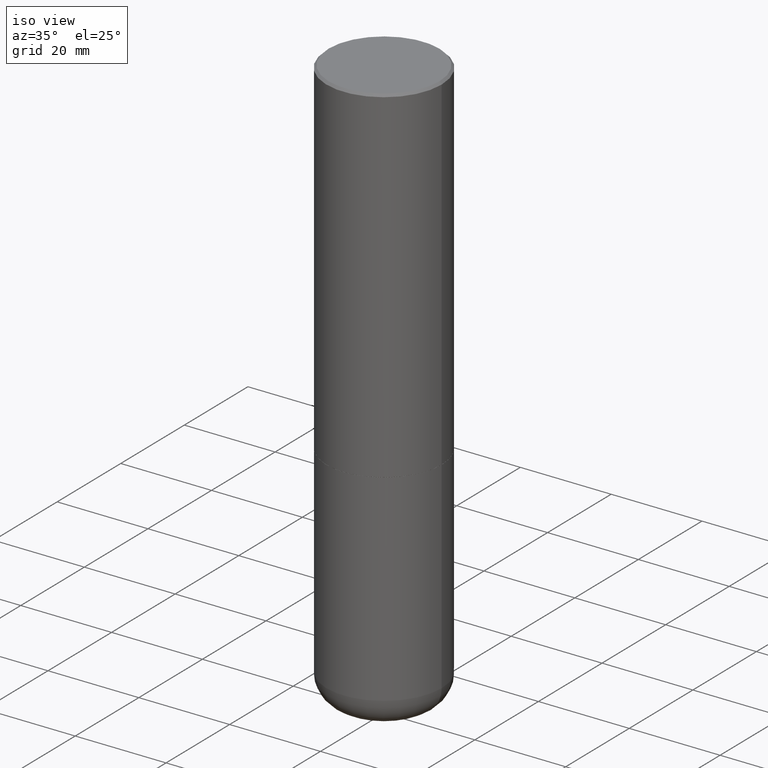
[diagram: clean part render]
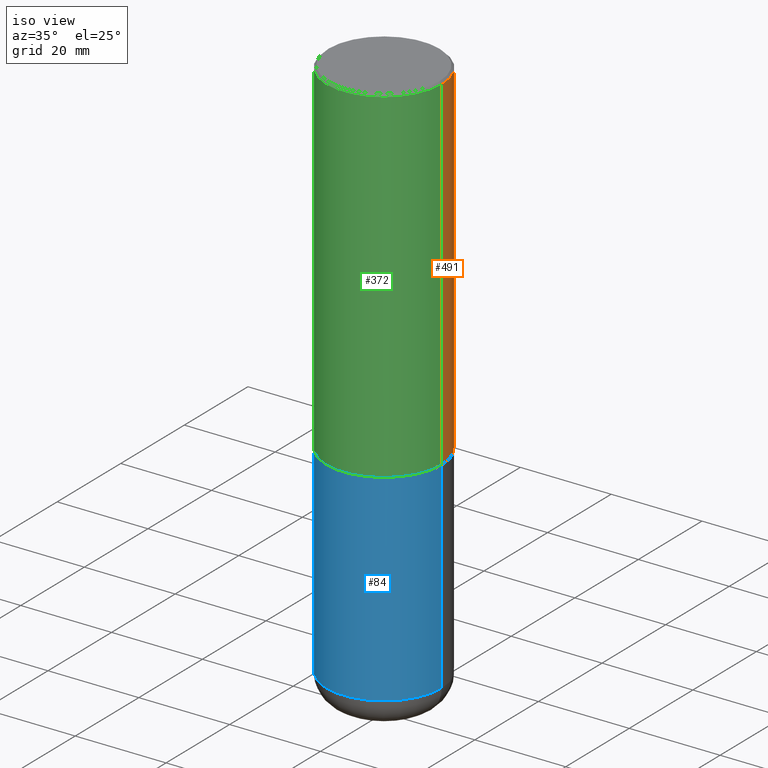
[diagram: same view with three faces highlighted in distinct colors, each labeled with its STEP entity id]
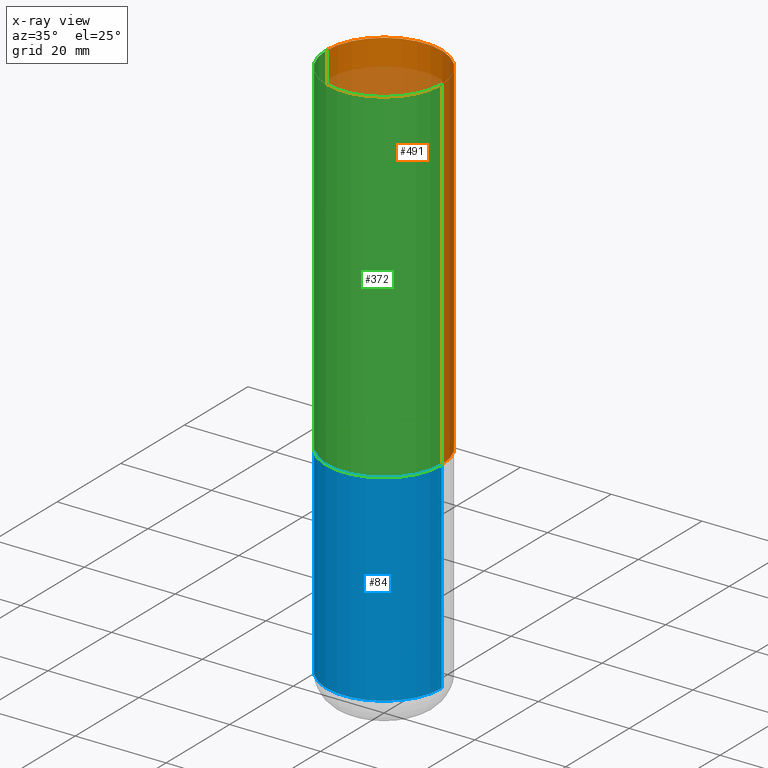
[diagram: x-ray of the same camera — body ghosted, the three highlighted faces saturated]
A machine part, iso view with three faces highlighted in distinct colors.
The next image is the same camera in x-ray (body ghosted, the three faces saturated) — at least one of them is partly hidden behind the body in this view.
Their STEP definitions:

[orange] entity #491 — the highlighted cylindrical surface (partial cylindrical patch) has radius 12.7 mm, axis along (-0, 0, 1).
#6 = DIRECTION ( 'NONE',  ( -2.445468806185136597E-29, 3.491481338843145583E-15, 1.000000000000000000 ) ) ;
#31 = LINE ( 'NONE', #135, #394 ) ;
#44 = DIRECTION ( 'NONE',  ( 1.000000000000000000, -6.982962677686266711E-15, 0.000000000000000000 ) ) ;
#70 = CIRCLE ( 'NONE', #220, 0.4999999999999990563 ) ;
#92 = CARTESIAN_POINT ( 'NONE',  ( 4.890937612370322204E-31, -6.982962677686361867E-17, -0.02000000000000020164 ) ) ;
#97 = DIRECTION ( 'NONE',  ( -2.445468806185136597E-29, 3.491481338843145583E-15, 1.000000000000000000 ) ) ;
#122 = ORIENTED_EDGE ( 'NONE', *, *, #136, .F. ) ;
#135 = CARTESIAN_POINT ( 'NONE',  ( -0.4999999999999995004, 3.552713678800497379E-15, -2.459467545127450649E-29 ) ) ;
#136 = EDGE_CURVE ( 'NONE', #434, #379, #70, .T. ) ;
#139 = DIRECTION ( 'NONE',  ( -2.445468806185136877E-29, 3.491481338843145188E-15, 1.000000000000000000 ) ) ;
#185 = VERTEX_POINT ( 'NONE', #284 ) ;
#202 = ORIENTED_EDGE ( 'NONE', *, *, #452, .F. ) ;
#204 = ORIENTED_EDGE ( 'NONE', *, *, #233, .T. ) ;
#220 = AXIS2_PLACEMENT_3D ( 'NONE', #92, #97, #365 ) ;
#228 = VERTEX_POINT ( 'NONE', #306 ) ;
#233 = EDGE_CURVE ( 'NONE', #185, #228, #329, .T. ) ;
#241 = AXIS2_PLACEMENT_3D ( 'NONE', #481, #295, #402 ) ;
#257 = CYLINDRICAL_SURFACE ( 'NONE', #241, 0.4999999999999995004 ) ;
#284 = CARTESIAN_POINT ( 'NONE',  ( 0.5000000000000000000, -1.396243387403372828E-14, -2.999000000000000554 ) ) ;
#292 = CARTESIAN_POINT ( 'NONE',  ( 0.4999999999999990563, -3.500078625662622769E-15, -0.02000000000000020164 ) ) ;
#295 = DIRECTION ( 'NONE',  ( -2.445468806185136597E-29, 3.491481338843145583E-15, 1.000000000000000000 ) ) ;
#299 = ORIENTED_EDGE ( 'NONE', *, *, #440, .T. ) ;
#306 = CARTESIAN_POINT ( 'NONE',  ( -0.5000000000000000000, -1.717677402183223054E-15, -2.999000000000000554 ) ) ;
#329 = CIRCLE ( 'NONE', #471, 0.5000000000000000000 ) ;
#336 = CARTESIAN_POINT ( 'NONE',  ( 0.4999999999999995004, -3.491481338843130200E-15, 2.438088387897965374E-29 ) ) ;
#365 = DIRECTION ( 'NONE',  ( 1.000000000000000000, -6.982962677686266711E-15, 0.000000000000000000 ) ) ;
#367 = DIRECTION ( 'NONE',  ( -2.445468806185136877E-29, 3.491481338843145188E-15, 1.000000000000000000 ) ) ;
#379 = VERTEX_POINT ( 'NONE', #483 ) ;
#387 = CARTESIAN_POINT ( 'NONE',  ( 7.333960949749226429E-29, -1.047095253519059492E-14, -2.999000000000000554 ) ) ;
#394 = VECTOR ( 'NONE', #367, 39.37007874015748143 ) ;
#395 = EDGE_LOOP ( 'NONE', ( #204, #299, #122, #202 ) ) ;
#402 = DIRECTION ( 'NONE',  ( 1.000000000000000000, -6.982962677686267499E-15, 4.876176775795935793E-29 ) ) ;
#434 = VERTEX_POINT ( 'NONE', #292 ) ;
#440 = EDGE_CURVE ( 'NONE', #228, #379, #31, .T. ) ;
#452 = EDGE_CURVE ( 'NONE', #185, #434, #477, .T. ) ;
#461 = VECTOR ( 'NONE', #139, 39.37007874015748143 ) ;
#471 = AXIS2_PLACEMENT_3D ( 'NONE', #387, #6, #44 ) ;
#477 = LINE ( 'NONE', #336, #461 ) ;
#481 = CARTESIAN_POINT ( 'NONE',  ( 0.000000000000000000, 0.000000000000000000, 0.000000000000000000 ) ) ;
#483 = CARTESIAN_POINT ( 'NONE',  ( -0.4999999999999990563, 3.421651712066262957E-15, -0.02000000000000020164 ) ) ;
#485 = FACE_OUTER_BOUND ( 'NONE', #395, .T. ) ;
#491 = ADVANCED_FACE ( 'NONE', ( #485 ), #257, .T. ) ;

[blue] entity #84 — the highlighted cylindrical surface (partial cylindrical patch) has radius 12.7 mm, axis along (-0, 0, 1).
#15 = DIRECTION ( 'NONE',  ( -2.445468806185136877E-29, 3.491481338843145188E-15, 1.000000000000000000 ) ) ;
#23 = DIRECTION ( 'NONE',  ( 1.000000000000000000, -6.982962677686266711E-15, 4.876176775795935793E-29 ) ) ;
#41 = EDGE_LOOP ( 'NONE', ( #297, #109, #428, #351 ) ) ;
#49 = VERTEX_POINT ( 'NONE', #117 ) ;
#59 = CYLINDRICAL_SURFACE ( 'NONE', #116, 0.5000000000000000000 ) ;
#84 = ADVANCED_FACE ( 'NONE', ( #206 ), #59, .T. ) ;
#101 = CARTESIAN_POINT ( 'NONE',  ( -0.5000000000000000000, -9.976793127330550292E-15, -4.750009519233957533 ) ) ;
#109 = ORIENTED_EDGE ( 'NONE', *, *, #408, .T. ) ;
#115 = CARTESIAN_POINT ( 'NONE',  ( 0.5000000000000000000, -3.491481338843133355E-15, 2.438088387897967896E-29 ) ) ;
#116 = AXIS2_PLACEMENT_3D ( 'NONE', #362, #167, #23 ) ;
#117 = CARTESIAN_POINT ( 'NONE',  ( 0.5000000000000000000, -2.007605093457579787E-14, -4.750009519233957533 ) ) ;
#119 = CARTESIAN_POINT ( 'NONE',  ( 7.336406418555409790E-29, -1.047444401652943635E-14, -3.000000000000000444 ) ) ;
#127 = CARTESIAN_POINT ( 'NONE',  ( -0.5000000000000000000, -9.976793127330550292E-15, -3.000000000000000444 ) ) ;
#129 = LINE ( 'NONE', #252, #248 ) ;
#147 = EDGE_CURVE ( 'NONE', #455, #153, #129, .T. ) ;
#148 = AXIS2_PLACEMENT_3D ( 'NONE', #119, #197, #242 ) ;
#153 = VERTEX_POINT ( 'NONE', #127 ) ;
#167 = DIRECTION ( 'NONE',  ( -2.445468806185136597E-29, 3.491481338843145583E-15, 1.000000000000000000 ) ) ;
#181 = CIRCLE ( 'NONE', #371, 0.5000000000000000000 ) ;
#186 = EDGE_CURVE ( 'NONE', #49, #388, #401, .T. ) ;
#197 = DIRECTION ( 'NONE',  ( -2.445468806185136597E-29, 3.491481338843145583E-15, 1.000000000000000000 ) ) ;
#206 = FACE_OUTER_BOUND ( 'NONE', #41, .T. ) ;
#213 = DIRECTION ( 'NONE',  ( 1.000000000000000000, -6.982962677686266711E-15, 0.000000000000000000 ) ) ;
#218 = CARTESIAN_POINT ( 'NONE',  ( 0.5000000000000000000, -1.396592535537257129E-14, -3.000000000000000444 ) ) ;
#242 = DIRECTION ( 'NONE',  ( 1.000000000000000000, -6.982962677686266711E-15, 0.000000000000000000 ) ) ;
#248 = VECTOR ( 'NONE', #470, 39.37007874015748143 ) ;
#252 = CARTESIAN_POINT ( 'NONE',  ( -0.5000000000000000000, 3.552713678800500929E-15, -2.459467545127452891E-29 ) ) ;
#276 = EDGE_CURVE ( 'NONE', #153, #388, #432, .T. ) ;
#297 = ORIENTED_EDGE ( 'NONE', *, *, #147, .F. ) ;
#351 = ORIENTED_EDGE ( 'NONE', *, *, #276, .F. ) ;
#362 = CARTESIAN_POINT ( 'NONE',  ( 0.000000000000000000, 0.000000000000000000, 0.000000000000000000 ) ) ;
#371 = AXIS2_PLACEMENT_3D ( 'NONE', #445, #405, #213 ) ;
#388 = VERTEX_POINT ( 'NONE', #218 ) ;
#401 = LINE ( 'NONE', #115, #423 ) ;
#405 = DIRECTION ( 'NONE',  ( -2.445468806185136597E-29, 3.491481338843145583E-15, 1.000000000000000000 ) ) ;
#408 = EDGE_CURVE ( 'NONE', #455, #49, #181, .T. ) ;
#423 = VECTOR ( 'NONE', #15, 39.37007874015748143 ) ;
#428 = ORIENTED_EDGE ( 'NONE', *, *, #186, .T. ) ;
#432 = CIRCLE ( 'NONE', #148, 0.5000000000000000000 ) ;
#445 = CARTESIAN_POINT ( 'NONE',  ( 1.161600010836909978E-28, -1.658456959573266451E-14, -4.750009519233957533 ) ) ;
#455 = VERTEX_POINT ( 'NONE', #101 ) ;
#470 = DIRECTION ( 'NONE',  ( -2.445468806185136877E-29, 3.491481338843145188E-15, 1.000000000000000000 ) ) ;

[green] entity #372 — the highlighted cylindrical surface (partial cylindrical patch) has radius 12.7 mm, axis along (-0, 0, 1).
#7 = ORIENTED_EDGE ( 'NONE', *, *, #452, .T. ) ;
#31 = LINE ( 'NONE', #135, #394 ) ;
#55 = CARTESIAN_POINT ( 'NONE',  ( 4.890937612370322204E-31, -6.982962677686361867E-17, -0.02000000000000020164 ) ) ;
#61 = CARTESIAN_POINT ( 'NONE',  ( 0.000000000000000000, 0.000000000000000000, 0.000000000000000000 ) ) ;
#66 = FACE_OUTER_BOUND ( 'NONE', #193, .T. ) ;
#67 = DIRECTION ( 'NONE',  ( -2.445468806185136597E-29, 3.491481338843145583E-15, 1.000000000000000000 ) ) ;
#91 = DIRECTION ( 'NONE',  ( -2.445468806185136597E-29, 3.491481338843145583E-15, 1.000000000000000000 ) ) ;
#135 = CARTESIAN_POINT ( 'NONE',  ( -0.4999999999999995004, 3.552713678800497379E-15, -2.459467545127450649E-29 ) ) ;
#139 = DIRECTION ( 'NONE',  ( -2.445468806185136877E-29, 3.491481338843145188E-15, 1.000000000000000000 ) ) ;
#141 = EDGE_CURVE ( 'NONE', #379, #434, #198, .T. ) ;
#144 = ORIENTED_EDGE ( 'NONE', *, *, #418, .T. ) ;
#159 = CIRCLE ( 'NONE', #364, 0.5000000000000000000 ) ;
#173 = DIRECTION ( 'NONE',  ( -2.445468806185136597E-29, 3.491481338843145583E-15, 1.000000000000000000 ) ) ;
#185 = VERTEX_POINT ( 'NONE', #284 ) ;
#193 = EDGE_LOOP ( 'NONE', ( #263, #144, #7, #268 ) ) ;
#198 = CIRCLE ( 'NONE', #293, 0.4999999999999990563 ) ;
#228 = VERTEX_POINT ( 'NONE', #306 ) ;
#263 = ORIENTED_EDGE ( 'NONE', *, *, #440, .F. ) ;
#268 = ORIENTED_EDGE ( 'NONE', *, *, #141, .F. ) ;
#284 = CARTESIAN_POINT ( 'NONE',  ( 0.5000000000000000000, -1.396243387403372828E-14, -2.999000000000000554 ) ) ;
#292 = CARTESIAN_POINT ( 'NONE',  ( 0.4999999999999990563, -3.500078625662622769E-15, -0.02000000000000020164 ) ) ;
#293 = AXIS2_PLACEMENT_3D ( 'NONE', #55, #91, #368 ) ;
#306 = CARTESIAN_POINT ( 'NONE',  ( -0.5000000000000000000, -1.717677402183223054E-15, -2.999000000000000554 ) ) ;
#333 = DIRECTION ( 'NONE',  ( 1.000000000000000000, -6.982962677686266711E-15, 0.000000000000000000 ) ) ;
#335 = CARTESIAN_POINT ( 'NONE',  ( 7.333960949749226429E-29, -1.047095253519059492E-14, -2.999000000000000554 ) ) ;
#336 = CARTESIAN_POINT ( 'NONE',  ( 0.4999999999999995004, -3.491481338843130200E-15, 2.438088387897965374E-29 ) ) ;
#364 = AXIS2_PLACEMENT_3D ( 'NONE', #335, #173, #333 ) ;
#367 = DIRECTION ( 'NONE',  ( -2.445468806185136877E-29, 3.491481338843145188E-15, 1.000000000000000000 ) ) ;
#368 = DIRECTION ( 'NONE',  ( 1.000000000000000000, -6.982962677686266711E-15, 0.000000000000000000 ) ) ;
#372 = ADVANCED_FACE ( 'NONE', ( #66 ), #446, .T. ) ;
#379 = VERTEX_POINT ( 'NONE', #483 ) ;
#394 = VECTOR ( 'NONE', #367, 39.37007874015748143 ) ;
#414 = AXIS2_PLACEMENT_3D ( 'NONE', #61, #67, #442 ) ;
#418 = EDGE_CURVE ( 'NONE', #228, #185, #159, .T. ) ;
#434 = VERTEX_POINT ( 'NONE', #292 ) ;
#440 = EDGE_CURVE ( 'NONE', #228, #379, #31, .T. ) ;
#442 = DIRECTION ( 'NONE',  ( 1.000000000000000000, -6.982962677686267499E-15, 4.876176775795935793E-29 ) ) ;
#446 = CYLINDRICAL_SURFACE ( 'NONE', #414, 0.4999999999999995004 ) ;
#452 = EDGE_CURVE ( 'NONE', #185, #434, #477, .T. ) ;
#461 = VECTOR ( 'NONE', #139, 39.37007874015748143 ) ;
#477 = LINE ( 'NONE', #336, #461 ) ;
#483 = CARTESIAN_POINT ( 'NONE',  ( -0.4999999999999990563, 3.421651712066262957E-15, -0.02000000000000020164 ) ) ;